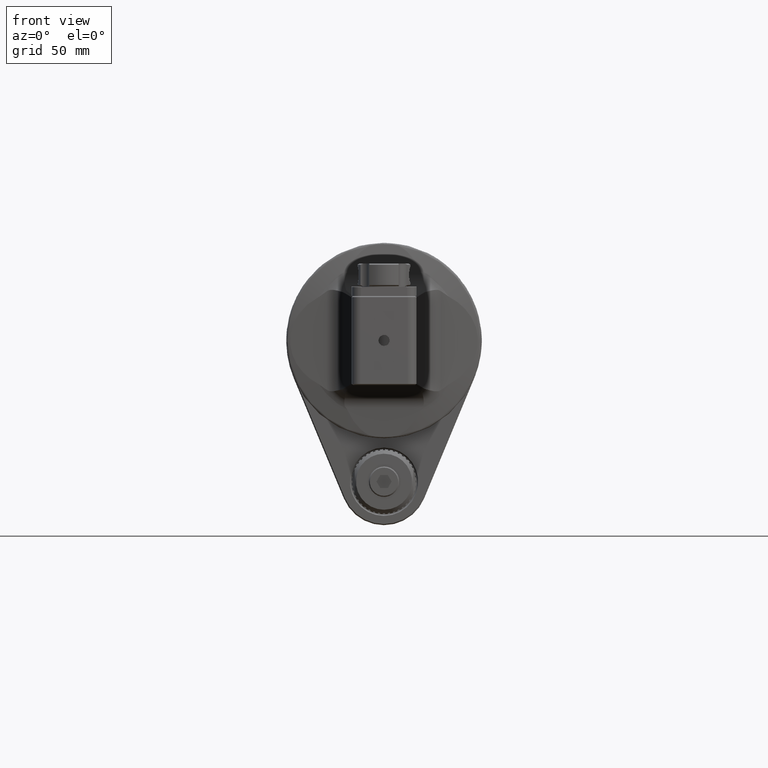
[diagram: clean part render]
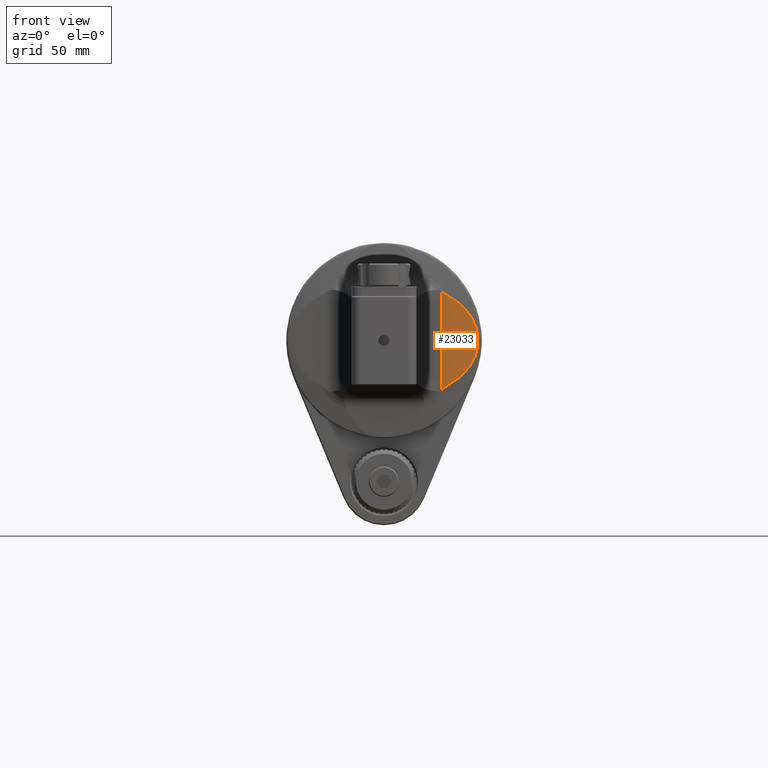
[diagram: same view with one face highlighted and labeled with its STEP entity id]
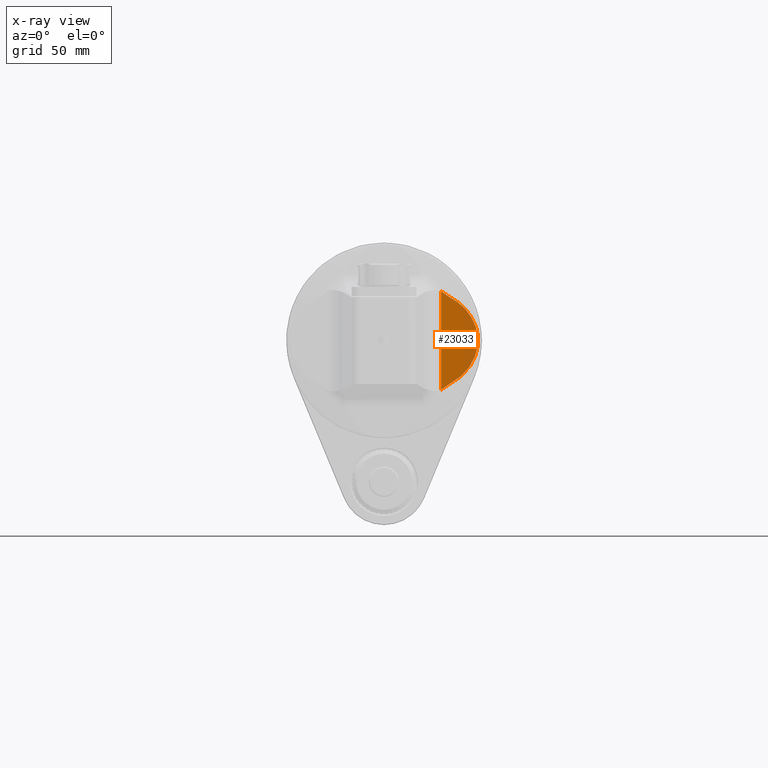
[diagram: x-ray of the same camera — body ghosted, the highlighted face saturated]
A machine part, front view. The second image highlights one B-rep face of the part: STEP entity #23033.
The next image is the same camera in x-ray: the body ghosted, the highlighted face saturated — about 0% of this face is hidden behind the body in this view.
In plain terms, the highlighted planar face has unit normal (0.0958, -0.9954, 0).
Its self-contained STEP definition (entity closure, byte-faithful):
#27=ELLIPSE('',#24710,28.2530290727382,23.6841930515216);
#302=B_SPLINE_CURVE_WITH_KNOTS('',3,(#35847,#35848,#35849,#35850,#35851,
#35852,#35853,#35854,#35855,#35856,#35857,#35858,#35859,#35860,#35861,#35862,
#35863,#35864,#35865,#35866,#35867,#35868,#35869,#35870,#35871,#35872,#35873,
#35874,#35875,#35876,#35877,#35878,#35879,#35880,#35881,#35882,#35883,#35884,
#35885,#35886,#35887,#35888,#35889),.UNSPECIFIED.,.F.,.F.,(4,3,3,3,3,3,
3,3,3,3,3,3,3,3,4),(0.,0.09090909090909,0.1818181818182,0.2727272727273,
0.3636363636364,0.4545454545455,0.5454545454545,0.6363636363636,0.72047084821796,
0.7272727272727,0.808387366109853,0.8181818181818,0.891690268366001,0.9090909090909,
1.),.UNSPECIFIED.);
#331=B_SPLINE_CURVE_WITH_KNOTS('',3,(#37322,#37323,#37324,#37325,#37326,
#37327,#37328,#37329,#37330,#37331,#37332,#37333,#37334,#37335,#37336,#37337,
#37338,#37339,#37340,#37341,#37342,#37343,#37344,#37345,#37346,#37347,#37348,
#37349,#37350,#37351,#37352,#37353,#37354,#37355,#37356,#37357,#37358,#37359,
#37360,#37361,#37362,#37363,#37364),.UNSPECIFIED.,.F.,.F.,(4,3,3,3,3,3,
3,3,3,3,3,3,3,3,4),(0.,0.09090909090909,0.16440793136631,0.1818181818182,
0.262929579153067,0.2727272727273,0.356826028129957,0.3636363636364,0.4545454545455,
0.5454545454545,0.6363636363636,0.7272727272727,0.8181818181818,0.9090909090909,
1.),.UNSPECIFIED.);
#1193=LINE('',#38020,#3268);
#3268=VECTOR('',#28095,45.38304666822);
#5587=FACE_OUTER_BOUND('',#7010,.T.);
#7010=EDGE_LOOP('',(#16413,#16414,#16415,#16416));
#9603=VERTEX_POINT('',#35724);
#9604=VERTEX_POINT('',#35846);
#9651=VERTEX_POINT('',#37315);
#9653=VERTEX_POINT('',#37321);
#12063=EDGE_CURVE('',#9604,#9603,#302,.T.);
#12134=EDGE_CURVE('',#9651,#9604,#27,.T.);
#12136=EDGE_CURVE('',#9653,#9651,#331,.T.);
#12334=EDGE_CURVE('',#9653,#9603,#1193,.T.);
#16413=ORIENTED_EDGE('',*,*,#12334,.F.);
#16414=ORIENTED_EDGE('',*,*,#12136,.T.);
#16415=ORIENTED_EDGE('',*,*,#12134,.T.);
#16416=ORIENTED_EDGE('',*,*,#12063,.T.);
#22101=PLANE('',#24756);
#23033=ADVANCED_FACE('',(#5587),#22101,.T.);
#24710=AXIS2_PLACEMENT_3D('',#37317,#27837,#27838);
#24756=AXIS2_PLACEMENT_3D('',#38021,#28096,#28097);
#27837=DIRECTION('center_axis',(0.095845752520218,-0.995396198367179,0.));
#27838=DIRECTION('ref_axis',(-0.995396198367179,-0.0958457525202178,6.28731466218E-16));
#28095=DIRECTION('',(0.,0.,1.));
#28096=DIRECTION('center_axis',(0.095845752520218,-0.995396198367179,0.));
#28097=DIRECTION('ref_axis',(0.995396198367179,0.095845752520218,0.));
#35724=CARTESIAN_POINT('',(26.32499364397,134.0608830937,22.69152333411));
#35846=CARTESIAN_POINT('',(29.9657905912,134.4114519665,20.13851211958));
#35847=CARTESIAN_POINT('Ctrl Pts',(29.9657905911935,134.411451966476,20.1385121195824));
#35848=CARTESIAN_POINT('Ctrl Pts',(29.9031230994045,134.405417773338,20.1711793223063));
#35849=CARTESIAN_POINT('Ctrl Pts',(29.8372250421781,134.399072813548,20.207257766188));
#35850=CARTESIAN_POINT('Ctrl Pts',(29.7682759507757,134.392433469744,20.246696392572));
#35851=CARTESIAN_POINT('Ctrl Pts',(29.6993268593732,134.38579412594,20.2861350189561));
#35852=CARTESIAN_POINT('Ctrl Pts',(29.6273265725935,134.378861430345,20.3289337184451));
#35853=CARTESIAN_POINT('Ctrl Pts',(29.551806745905,134.371589856043,20.3753811309272));
#35854=CARTESIAN_POINT('Ctrl Pts',(29.4762869192166,134.364318281741,20.4218285434093));
#35855=CARTESIAN_POINT('Ctrl Pts',(29.3972476055359,134.356707527811,20.471924705761));
#35856=CARTESIAN_POINT('Ctrl Pts',(29.3143188901519,134.348722376453,20.5259079259972));
#35857=CARTESIAN_POINT('Ctrl Pts',(29.2313901747678,134.340737225095,20.5798911462333));
#35858=CARTESIAN_POINT('Ctrl Pts',(29.1445720693988,134.332377602301,20.6377614323129));
#35859=CARTESIAN_POINT('Ctrl Pts',(29.0534781505392,134.323606269905,20.6997445649721));
#35860=CARTESIAN_POINT('Ctrl Pts',(28.9623842316796,134.31483493751,20.7617276976312));
#35861=CARTESIAN_POINT('Ctrl Pts',(28.8670145075403,134.305651853372,20.8278236827982));
#35862=CARTESIAN_POINT('Ctrl Pts',(28.766913435296,134.296013226228,20.8982780864901));
#35863=CARTESIAN_POINT('Ctrl Pts',(28.6668123630518,134.286374599084,20.9687324901819));
#35864=CARTESIAN_POINT('Ctrl Pts',(28.5619799574551,134.276280354477,21.0435453231512));
#35865=CARTESIAN_POINT('Ctrl Pts',(28.4518874252818,134.265679671567,21.1229776318849));
#35866=CARTESIAN_POINT('Ctrl Pts',(28.3417948931083,134.255078988657,21.2024099406187));
#35867=CARTESIAN_POINT('Ctrl Pts',(28.2264422600095,134.24397174458,21.2864617442336));
#35868=CARTESIAN_POINT('Ctrl Pts',(28.1052450836742,134.232301810428,21.3753865992231));
#35869=CARTESIAN_POINT('Ctrl Pts',(27.9931159612262,134.221505028564,21.457658037018));
#35870=CARTESIAN_POINT('Ctrl Pts',(27.8759838472434,134.210226422174,21.5440999649946));
#35871=CARTESIAN_POINT('Ctrl Pts',(27.7533255404921,134.198415806048,21.6349109267399));
#35872=CARTESIAN_POINT('Ctrl Pts',(27.7434059753421,134.197460663431,21.6422549483169));
#35873=CARTESIAN_POINT('Ctrl Pts',(27.7334502545989,134.196502038906,21.6496275192044));
#35874=CARTESIAN_POINT('Ctrl Pts',(27.7234580945089,134.195539904625,21.6570287309627));
#35875=CARTESIAN_POINT('Ctrl Pts',(27.6042983078709,134.184066137722,21.7452906088784));
#35876=CARTESIAN_POINT('Ctrl Pts',(27.4799580826489,134.172093411578,21.8376288291153));
#35877=CARTESIAN_POINT('Ctrl Pts',(27.349936875298,134.159573871487,21.9341914843845));
#35878=CARTESIAN_POINT('Ctrl Pts',(27.3342370398307,134.158062158717,21.94585125767));
#35879=CARTESIAN_POINT('Ctrl Pts',(27.3184543464899,134.156542468677,21.9575725681566));
#35880=CARTESIAN_POINT('Ctrl Pts',(27.3025878904756,134.155014713263,21.9693556298794));
#35881=CARTESIAN_POINT('Ctrl Pts',(27.1835083765883,134.143548739269,22.0577888162697));
#35882=CARTESIAN_POINT('Ctrl Pts',(27.0597118776861,134.131628378563,22.1497021822558));
#35883=CARTESIAN_POINT('Ctrl Pts',(26.930636464758,134.119199871102,22.2452985838688));
#35884=CARTESIAN_POINT('Ctrl Pts',(26.9000822239713,134.116257842089,22.2679278004404));
#35885=CARTESIAN_POINT('Ctrl Pts',(26.8692320847269,134.113287316357,22.2907631886677));
#35886=CARTESIAN_POINT('Ctrl Pts',(26.8380784106068,134.110287537568,22.3138070466961));
#35887=CARTESIAN_POINT('Ctrl Pts',(26.6753170366145,134.094615289233,22.4341989459096));
#35888=CARTESIAN_POINT('Ctrl Pts',(26.504274745907,134.078145900412,22.5602899092475));
#35889=CARTESIAN_POINT('Ctrl Pts',(26.3249936439592,134.060883093742,22.6915233341006));
#37315=CARTESIAN_POINT('',(29.96579059119,134.4114519665,-20.13851211958));
#37317=CARTESIAN_POINT('Origin',(15.164423861729,132.98624245206,0.));
#37321=CARTESIAN_POINT('',(26.32499364397,134.0608830937,-22.69152333411));
#37322=CARTESIAN_POINT('Ctrl Pts',(26.3249936439591,134.060883093742,-22.6915233341006));
#37323=CARTESIAN_POINT('Ctrl Pts',(26.504280713563,134.078146475027,-22.5602855409141));
#37324=CARTESIAN_POINT('Ctrl Pts',(26.6753278048716,134.094616326046,-22.4341910058781));
#37325=CARTESIAN_POINT('Ctrl Pts',(26.8380926419322,134.110288907893,-22.3137965199916));
#37326=CARTESIAN_POINT('Ctrl Pts',(26.9696859366351,134.122959990413,-22.2164591137806));
#37327=CARTESIAN_POINT('Ctrl Pts',(27.0958646086029,134.135109486955,-22.1228455424888));
#37328=CARTESIAN_POINT('Ctrl Pts',(27.2171959090235,134.146792403928,-22.0327639174446));
#37329=CARTESIAN_POINT('Ctrl Pts',(27.2459366117997,134.149559828682,-22.0114255719227));
#37330=CARTESIAN_POINT('Ctrl Pts',(27.2744052253972,134.152301050006,-21.9902851995085));
#37331=CARTESIAN_POINT('Ctrl Pts',(27.3026091102822,134.155016756503,-21.9693398713075));
#37332=CARTESIAN_POINT('Ctrl Pts',(27.4340062156609,134.167668771438,-21.8717591476573));
#37333=CARTESIAN_POINT('Ctrl Pts',(27.5596601794698,134.179767920351,-21.77841770164));
#37334=CARTESIAN_POINT('Ctrl Pts',(27.6800743822507,134.191362523909,-21.6891730170917));
#37335=CARTESIAN_POINT('Ctrl Pts',(27.6946195818108,134.192763071508,-21.6783928788983));
#37336=CARTESIAN_POINT('Ctrl Pts',(27.70908829999,134.194156252674,-21.667672461138));
#37337=CARTESIAN_POINT('Ctrl Pts',(27.7234814009667,134.195542148785,-21.6570114678693));
#37338=CARTESIAN_POINT('Ctrl Pts',(27.8470249542888,134.207438023786,-21.5655025572813));
#37339=CARTESIAN_POINT('Ctrl Pts',(27.9649994963509,134.218797685866,-21.4783762749761));
#37340=CARTESIAN_POINT('Ctrl Pts',(28.077930299697,134.229671697121,-21.3954376445719));
#37341=CARTESIAN_POINT('Ctrl Pts',(28.0870754607177,134.230552276917,-21.3887212562402));
#37342=CARTESIAN_POINT('Ctrl Pts',(28.0961875328654,134.231429669469,-21.3820323049105));
#37343=CARTESIAN_POINT('Ctrl Pts',(28.1052667882584,134.232303900342,-21.3753706741629));
#37344=CARTESIAN_POINT('Ctrl Pts',(28.2264629985068,134.243973741553,-21.2864465977114));
#37345=CARTESIAN_POINT('Ctrl Pts',(28.3418143480008,134.25508086217,-21.2023958163359));
#37346=CARTESIAN_POINT('Ctrl Pts',(28.4519053302088,134.265681395615,-21.1229647134218));
#37347=CARTESIAN_POINT('Ctrl Pts',(28.5619963124166,134.276281929061,-21.0435336105078));
#37348=CARTESIAN_POINT('Ctrl Pts',(28.6668269015916,134.286375998646,-20.9687221668669));
#37349=CARTESIAN_POINT('Ctrl Pts',(28.7669263601923,134.296014470755,-20.8982689895444));
#37350=CARTESIAN_POINT('Ctrl Pts',(28.8670258187932,134.305652942863,-20.8278158122218));
#37351=CARTESIAN_POINT('Ctrl Pts',(28.9623941322147,134.314835891208,-20.7617208905726));
#37352=CARTESIAN_POINT('Ctrl Pts',(29.0534864926089,134.323607073156,-20.6997388887842));
#37353=CARTESIAN_POINT('Ctrl Pts',(29.1445788530031,134.332378255103,-20.6377568869959));
#37354=CARTESIAN_POINT('Ctrl Pts',(29.2313952519926,134.340737713686,-20.5798877990217));
#37355=CARTESIAN_POINT('Ctrl Pts',(29.3143225485273,134.348722728716,-20.5259055445431));
#37356=CARTESIAN_POINT('Ctrl Pts',(29.3972498450619,134.356707743745,-20.4719232900645));
#37357=CARTESIAN_POINT('Ctrl Pts',(29.4762880275109,134.364318388728,-20.4218278611835));
#37358=CARTESIAN_POINT('Ctrl Pts',(29.551806970769,134.371589877696,-20.3753809926405));
#37359=CARTESIAN_POINT('Ctrl Pts',(29.6273259140271,134.378861366664,-20.3289341240975));
#37360=CARTESIAN_POINT('Ctrl Pts',(29.6993255650811,134.385794001122,-20.2861357789496));
#37361=CARTESIAN_POINT('Ctrl Pts',(29.7682745778336,134.392433337546,-20.2466971779521));
#37362=CARTESIAN_POINT('Ctrl Pts',(29.837223590586,134.399072673969,-20.2072585769546));
#37363=CARTESIAN_POINT('Ctrl Pts',(29.9031221263142,134.40541767964,-20.1711798295561));
#37364=CARTESIAN_POINT('Ctrl Pts',(29.9657905911935,134.411451966476,-20.1385121195824));
#38020=CARTESIAN_POINT('',(26.32499364397,134.0608830937,-22.69152333411));
#38021=CARTESIAN_POINT('Origin',(20.5,133.5,-54.));